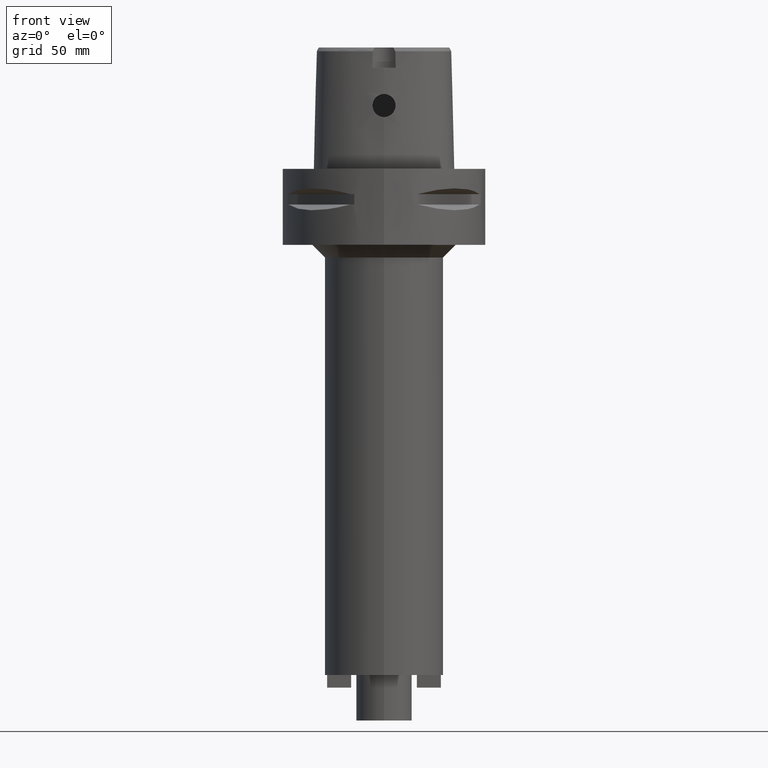
[diagram: clean part render]
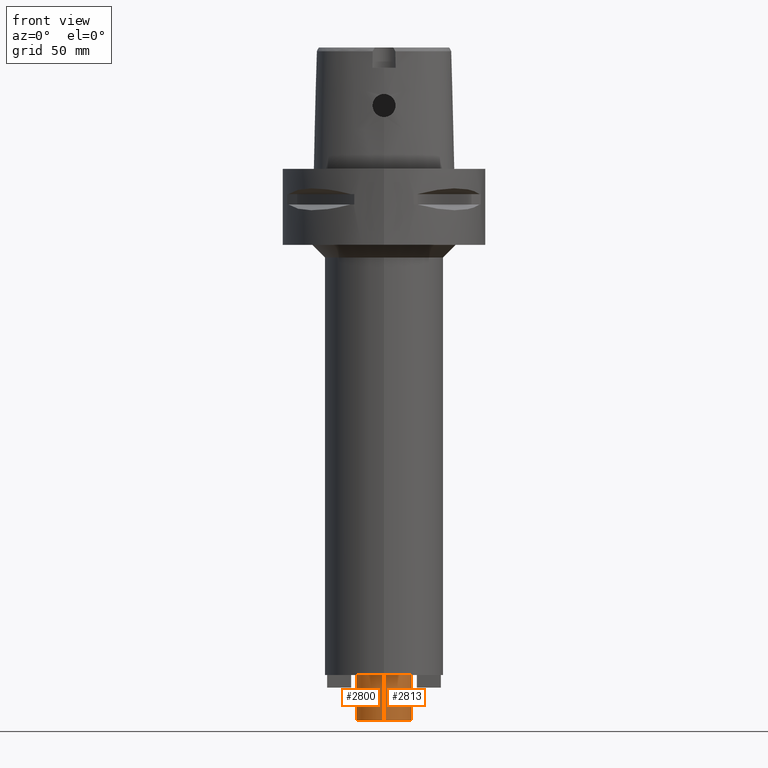
[diagram: same view with one multi-face feature highlighted, each face labeled with its STEP entity id]
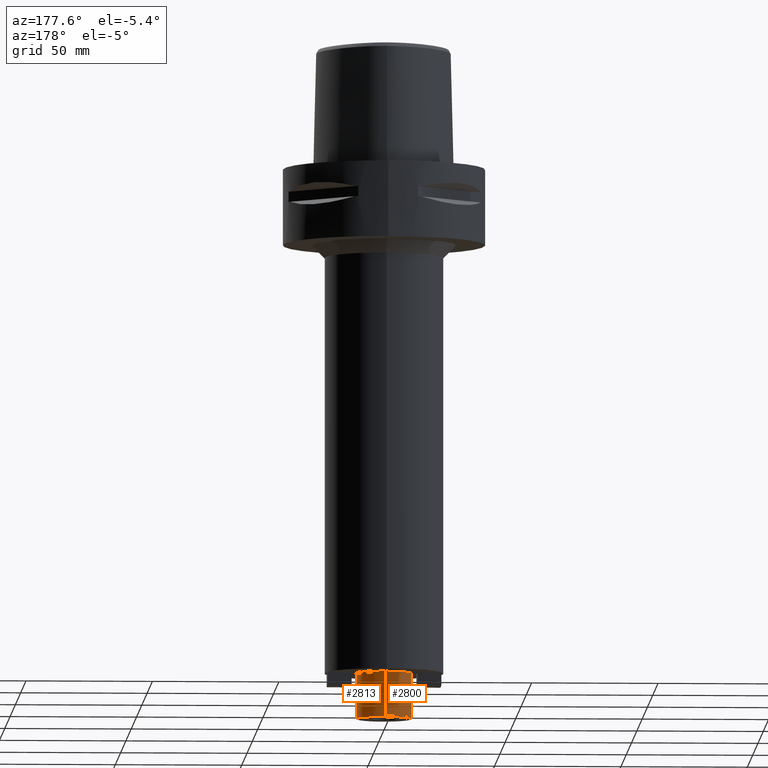
[diagram: same view with one multi-face feature highlighted, each face labeled with its STEP entity id]
A machine part, front view. The highlighted faces form ONE feature: a constant-radius fillet chain: 2 tangent blend faces with common blend radius 11 mm. The faces share edges in the B-rep.
A second angle (auxiliary view) of the same feature is appended — it is thin or edge-on in the first view.
Their STEP definitions:
[1] entity #2800 (Cylinder):
#569=CARTESIAN_POINT('',(0.E0,1.358133300254E-14,-2.E2));
#570=DIRECTION('',(0.E0,0.E0,-1.E0));
#571=DIRECTION('',(0.E0,-1.E0,0.E0));
#572=AXIS2_PLACEMENT_3D('',#569,#570,#571);
#613=DIRECTION('',(0.E0,0.E0,-1.E0));
#614=VECTOR('',#613,1.8E1);
#615=CARTESIAN_POINT('',(0.E0,-1.1E1,-2.E2));
#616=LINE('',#615,#614);
#620=DIRECTION('',(0.E0,0.E0,-1.E0));
#621=VECTOR('',#620,1.8E1);
#622=CARTESIAN_POINT('',(0.E0,1.1E1,-2.E2));
#623=LINE('',#622,#621);
#635=CARTESIAN_POINT('',(0.E0,1.358133300254E-14,-2.18E2));
#636=DIRECTION('',(0.E0,0.E0,1.E0));
#637=DIRECTION('',(0.E0,1.E0,0.E0));
#638=AXIS2_PLACEMENT_3D('',#635,#636,#637);
#1720=CARTESIAN_POINT('',(0.E0,-1.1E1,-2.E2));
#1721=CARTESIAN_POINT('',(0.E0,1.1E1,-2.E2));
#1722=VERTEX_POINT('',#1720);
#1723=VERTEX_POINT('',#1721);
#1740=CARTESIAN_POINT('',(0.E0,1.1E1,-2.18E2));
#1741=VERTEX_POINT('',#1740);
#1742=CARTESIAN_POINT('',(0.E0,-1.1E1,-2.18E2));
#1743=VERTEX_POINT('',#1742);
#2786=CARTESIAN_POINT('',(0.E0,1.358133300254E-14,1.09E1));
#2787=DIRECTION('',(0.E0,0.E0,-1.E0));
#2788=DIRECTION('',(0.E0,-1.E0,0.E0));
#2789=AXIS2_PLACEMENT_3D('',#2786,#2787,#2788);
#2790=CYLINDRICAL_SURFACE('',#2789,1.1E1);
#2792=ORIENTED_EDGE('',*,*,#2791,.F.);
#2793=ORIENTED_EDGE('',*,*,#2759,.F.);
#2795=ORIENTED_EDGE('',*,*,#2794,.T.);
#2797=ORIENTED_EDGE('',*,*,#2796,.F.);
#2798=EDGE_LOOP('',(#2792,#2793,#2795,#2797));
#2799=FACE_OUTER_BOUND('',#2798,.F.);
#573=CIRCLE('',#572,1.1E1);
#639=CIRCLE('',#638,1.1E1);
#2759=EDGE_CURVE('',#1722,#1723,#573,.T.);
#2791=EDGE_CURVE('',#1723,#1741,#623,.T.);
#2794=EDGE_CURVE('',#1722,#1743,#616,.T.);
#2796=EDGE_CURVE('',#1741,#1743,#639,.T.);
#2800=ADVANCED_FACE('',(#2799),#2790,.T.);
[2] entity #2813 (Cylinder):
#577=CARTESIAN_POINT('',(0.E0,1.358133300254E-14,-2.E2));
#578=DIRECTION('',(0.E0,0.E0,-1.E0));
#579=DIRECTION('',(0.E0,1.E0,0.E0));
#580=AXIS2_PLACEMENT_3D('',#577,#578,#579);
#613=DIRECTION('',(0.E0,0.E0,-1.E0));
#614=VECTOR('',#613,1.8E1);
#615=CARTESIAN_POINT('',(0.E0,-1.1E1,-2.E2));
#616=LINE('',#615,#614);
#620=DIRECTION('',(0.E0,0.E0,-1.E0));
#621=VECTOR('',#620,1.8E1);
#622=CARTESIAN_POINT('',(0.E0,1.1E1,-2.E2));
#623=LINE('',#622,#621);
#627=CARTESIAN_POINT('',(0.E0,1.358133300254E-14,-2.18E2));
#628=DIRECTION('',(0.E0,0.E0,1.E0));
#629=DIRECTION('',(0.E0,-1.E0,0.E0));
#630=AXIS2_PLACEMENT_3D('',#627,#628,#629);
#1720=CARTESIAN_POINT('',(0.E0,-1.1E1,-2.E2));
#1721=CARTESIAN_POINT('',(0.E0,1.1E1,-2.E2));
#1722=VERTEX_POINT('',#1720);
#1723=VERTEX_POINT('',#1721);
#1740=CARTESIAN_POINT('',(0.E0,1.1E1,-2.18E2));
#1741=VERTEX_POINT('',#1740);
#1742=CARTESIAN_POINT('',(0.E0,-1.1E1,-2.18E2));
#1743=VERTEX_POINT('',#1742);
#2801=CARTESIAN_POINT('',(0.E0,1.358133300254E-14,1.09E1));
#2802=DIRECTION('',(0.E0,0.E0,-1.E0));
#2803=DIRECTION('',(0.E0,-1.E0,0.E0));
#2804=AXIS2_PLACEMENT_3D('',#2801,#2802,#2803);
#2805=CYLINDRICAL_SURFACE('',#2804,1.1E1);
#2806=ORIENTED_EDGE('',*,*,#2791,.T.);
#2808=ORIENTED_EDGE('',*,*,#2807,.F.);
#2809=ORIENTED_EDGE('',*,*,#2794,.F.);
#2810=ORIENTED_EDGE('',*,*,#2761,.F.);
#2811=EDGE_LOOP('',(#2806,#2808,#2809,#2810));
#2812=FACE_OUTER_BOUND('',#2811,.F.);
#581=CIRCLE('',#580,1.1E1);
#631=CIRCLE('',#630,1.1E1);
#2761=EDGE_CURVE('',#1723,#1722,#581,.T.);
#2791=EDGE_CURVE('',#1723,#1741,#623,.T.);
#2794=EDGE_CURVE('',#1722,#1743,#616,.T.);
#2807=EDGE_CURVE('',#1743,#1741,#631,.T.);
#2813=ADVANCED_FACE('',(#2812),#2805,.T.);